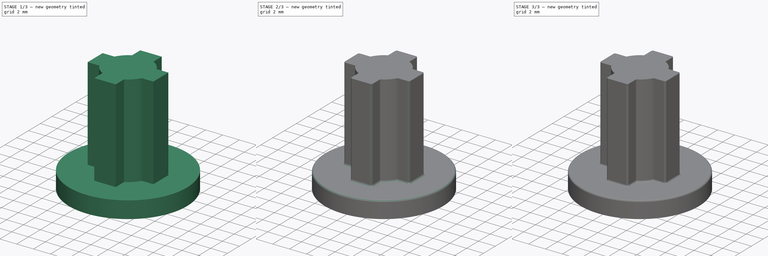
[diagram: build sequence overview — one tinted view per stage of 3, left to right]
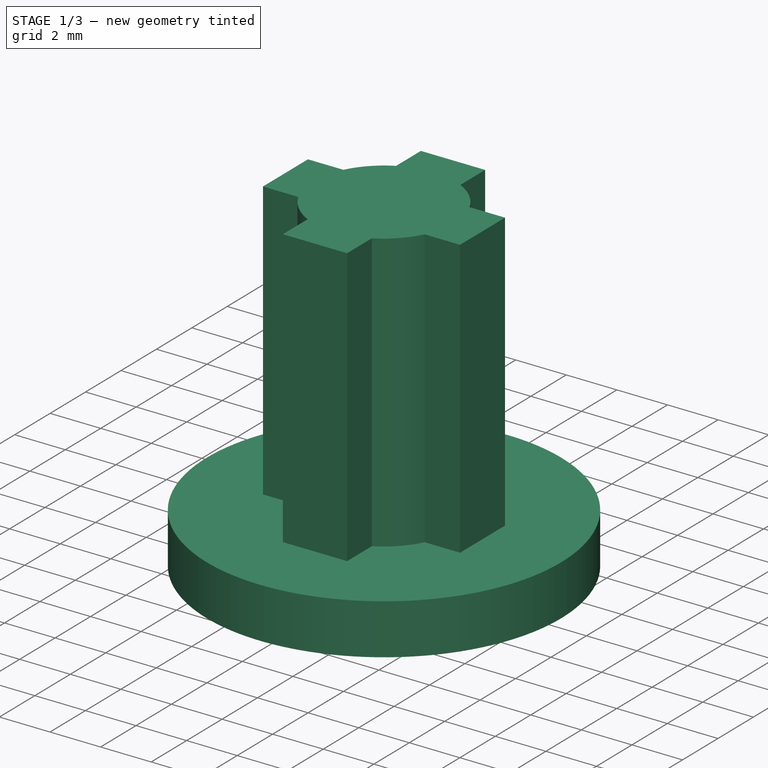
[diagram: stage 1 of 3 — iso view after this stage's code; geometry added in this stage tinted green]
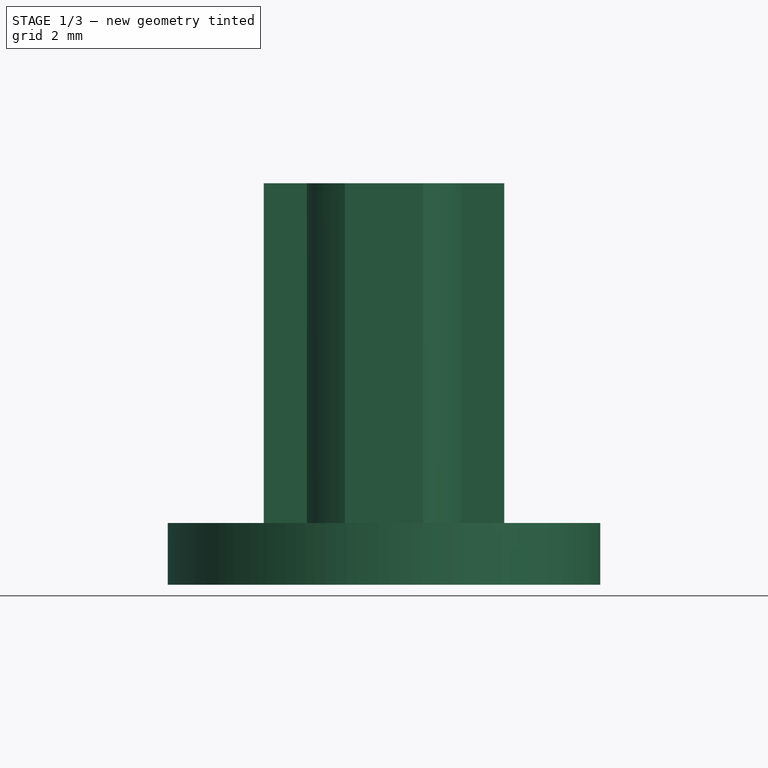
[diagram: stage 1 of 3 — front view after this stage's code; geometry added in this stage tinted green]
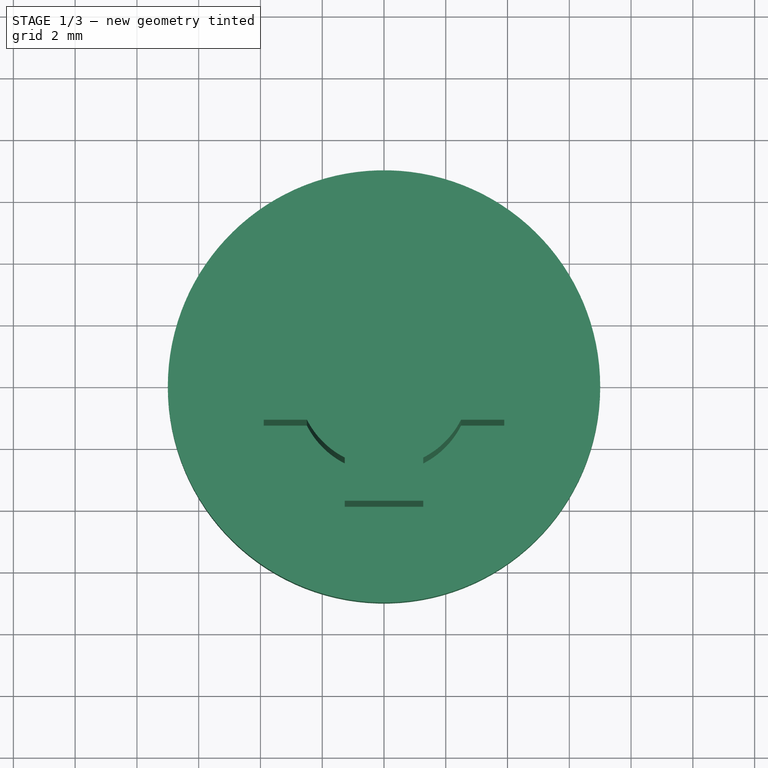
[diagram: stage 1 of 3 — top view after this stage's code; geometry added in this stage tinted green]
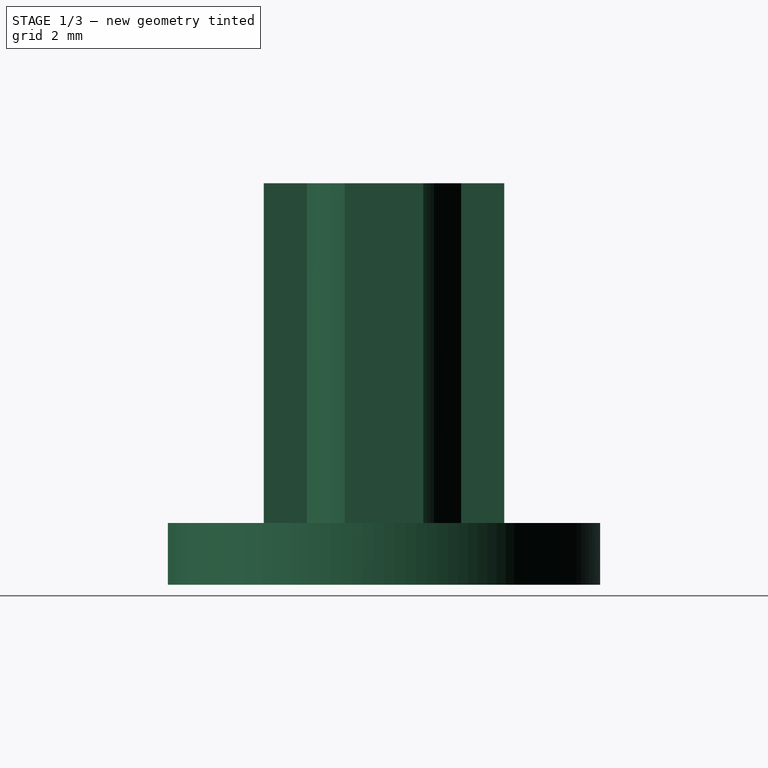
[diagram: stage 1 of 3 — right view after this stage's code; geometry added in this stage tinted green]
FCSTD DOCUMENT  (FreeCAD 0.20R29603 (Git))
Label: master
License: All rights reserved
LicenseURL: http://en.wikipedia.org/wiki/All_rights_reserved
objects: Sketcher::SketchObject×3, PartDesign::Fillet×3, PartDesign::Pad×2, PartDesign::Pocket×1, PartDesign::Chamfer×1, PartDesign::Body×1
note: 18 computed .brp shape members not serialized (recipe doc carries the construction recipe); baked Part::Feature solids carry a one-line shape summary decoded from their .brp

FEATURE [Sketcher::SketchObject] Sketch
  FullyConstrained = true
  MapMode = 5
  Support = -> [XY_Plane]
  sketch-geometry (1):
    g0: Circle CenterX=0 CenterY=0 CenterZ=0 NormalX=0 NormalY=0 NormalZ=1 AngleXU=0 Radius=7
  constraints (2):
    c: Coincident(g0,g-1)
    c: Diameter(g0) = 14
FEATURE [PartDesign::Pad] Pad
  Direction = (1,1,1)
  Length = 2
  Length2 = 100
  Profile = -> Sketch
  Type = 0
FEATURE [Sketcher::SketchObject] Sketch001
  FullyConstrained = true
  MapMode = 5
  Placement = pos=(0,0,2) rot=(0,0,1;0rad)
  Support = -> [Pad]
  sketch-geometry (16):
    g0: ArcOfCircle CenterX=0 CenterY=0 CenterZ=0 NormalX=0 NormalY=0 NormalZ=1 AngleXU=0 Radius=2.8 StartAngle=2.04156 EndAngle=2.67082
    g1: LineSegment StartX=-1.27 StartY=2.49542 StartZ=0 EndX=-1.27 EndY=3.89542 EndZ=0
    g2: LineSegment StartX=-1.27 StartY=3.89542 StartZ=0 EndX=1.27 EndY=3.89542 EndZ=0
    g3: LineSegment StartX=1.27 StartY=3.89542 StartZ=0 EndX=1.27 EndY=2.49542 EndZ=0
    g4: LineSegment StartX=-2.49542 StartY=1.27 StartZ=0 EndX=-3.89542 EndY=1.27 EndZ=0
    g5: LineSegment StartX=-3.89542 StartY=1.27 StartZ=0 EndX=-3.89542 EndY=-1.27 EndZ=0
    g6: LineSegment StartX=-3.89542 StartY=-1.27 StartZ=0 EndX=-2.49542 EndY=-1.27 EndZ=0
    g7: ArcOfCircle CenterX=0 CenterY=0 CenterZ=0 NormalX=0 NormalY=0 NormalZ=1 AngleXU=0 Radius=2.8 StartAngle=3.61236 EndAngle=4.24162
    g8: LineSegment StartX=2.49542 StartY=1.27 StartZ=0 EndX=3.89542 EndY=1.27 EndZ=0
    g9: LineSegment StartX=3.89542 StartY=1.27 StartZ=0 EndX=3.89542 EndY=-1.27 EndZ=0
    g10: LineSegment StartX=3.89542 StartY=-1.27 StartZ=0 EndX=2.49542 EndY=-1.27 EndZ=0
    g11: LineSegment StartX=-1.27 StartY=-2.49542 StartZ=0 EndX=-1.27 EndY=-3.89542 EndZ=0
    g12: LineSegment StartX=-1.27 StartY=-3.89542 StartZ=0 EndX=1.27 EndY=-3.89542 EndZ=0
    g13: LineSegment StartX=1.27 StartY=-3.89542 StartZ=0 EndX=1.27 EndY=-2.49542 EndZ=0
    g14: ArcOfCircle CenterX=0 CenterY=0 CenterZ=0 NormalX=0 NormalY=0 NormalZ=1 AngleXU=0 Radius=2.8 StartAngle=0.470769 EndAngle=1.10003
    g15: ArcOfCircle CenterX=0 CenterY=0 CenterZ=0 NormalX=0 NormalY=0 NormalZ=1 AngleXU=0 Radius=2.8 StartAngle=5.18316 EndAngle=5.81242
  constraints (48):
    c: Coincident(g0,g-1)
    c: Vertical(g1)
    c: Coincident(g2,g1)
    c: Horizontal(g2)
    c: Coincident(g3,g2)
    c: Vertical(g3)
    c: DistanceX(g0,g2) = 1.27
    c: DistanceX(g1,g0) = 1.27
    c: DistanceY(g3,g3) = 1.4
    c: Radius(g0) = 2.8
    c: Coincident(g0,g1)
    c: Coincident(g14,g3)
    c: Horizontal(g4)
    c: Coincident(g5,g4)
    c: Vertical(g5)
    c: Horizontal(g6)
    c: Equal(g5,g2)
    c: Equal(g3,g4)
    c: Equal(g4,g6)
    c: Coincident(g5,g6)
    c: Equal(g0,g7)
    c: Coincident(g0,g4)
    c: Coincident(g7,g6)
    c: Coincident(g0,g7)
    c: Horizontal(g8)
    c: Coincident(g9,g8)
    c: Vertical(g9)
    c: Coincident(g10,g9)
    c: Horizontal(g10)
    c: Equal(g2,g9)
    c: Equal(g3,g8)
    c: Equal(g8,g10)
    c: Vertical(g11)
    c: Coincident(g12,g11)
    c: Horizontal(g12)
    c: Coincident(g13,g12)
    c: Vertical(g13)
    c: Equal(g2,g12)
    c: Equal(g3,g13)
    c: Equal(g13,g11)
    c: Equal(g7,g14)
    c: Coincident(g15,g10)
    c: Coincident(g14,g8)
    c: Coincident(g7,g14)
    c: Equal(g7,g15)
    c: Coincident(g7,g11)
    c: Coincident(g15,g13)
    c: Coincident(g7,g15)
FEATURE [PartDesign::Pad] Pad001
  BaseFeature = -> Pad
  Direction = (1,1,1)
  Length = 11
  Length2 = 100
  Profile = -> Sketch001
  Type = 0
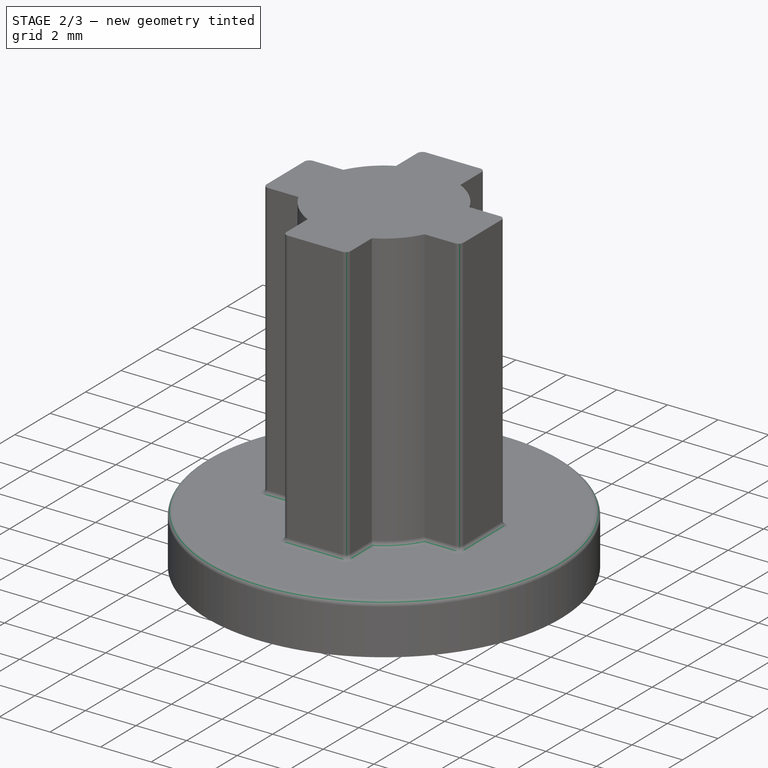
[diagram: stage 2 of 3 — iso view after this stage's code; geometry added in this stage tinted green]
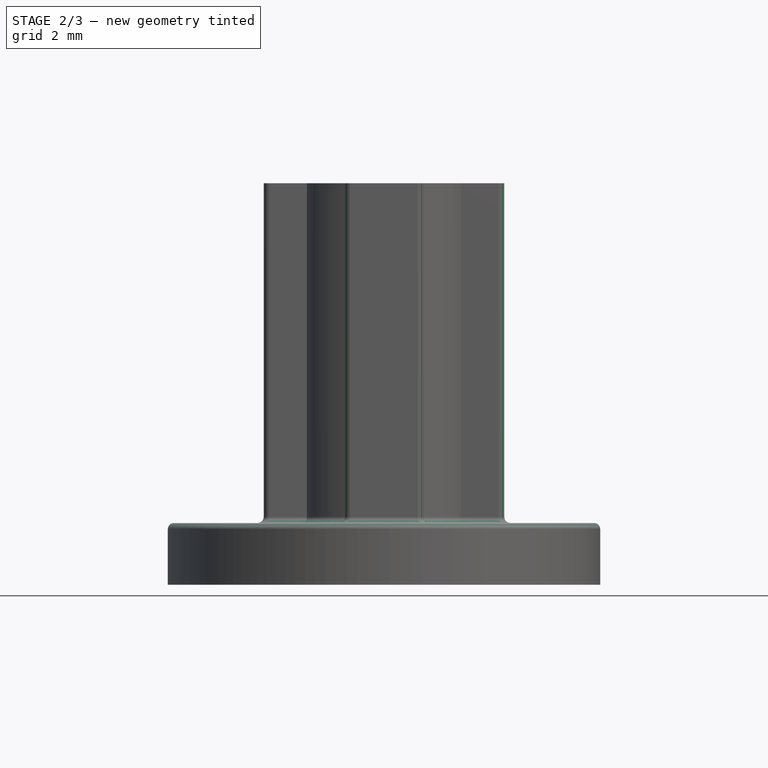
[diagram: stage 2 of 3 — front view after this stage's code; geometry added in this stage tinted green]
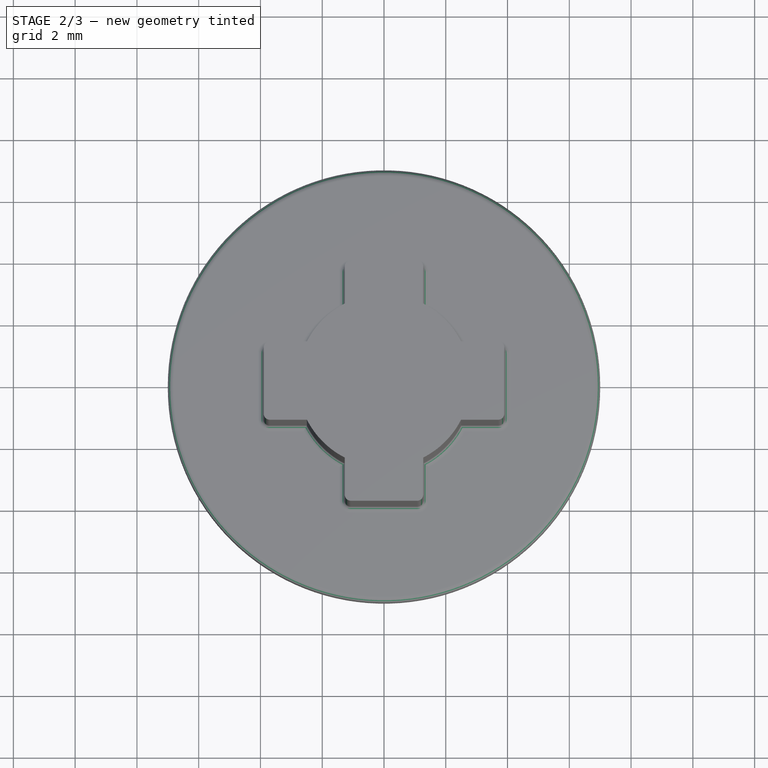
[diagram: stage 2 of 3 — top view after this stage's code; geometry added in this stage tinted green]
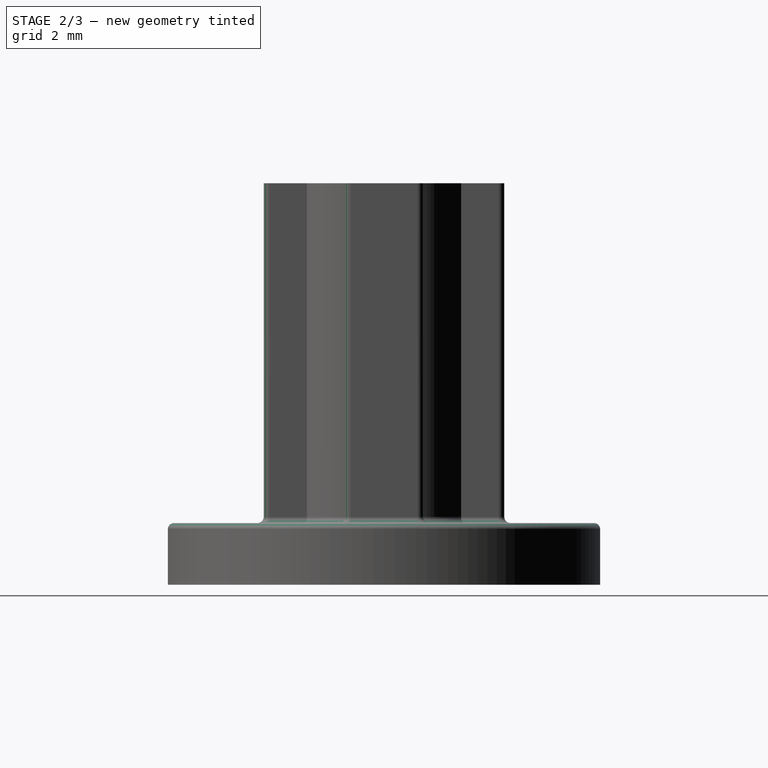
[diagram: stage 2 of 3 — right view after this stage's code; geometry added in this stage tinted green]
FEATURE [Sketcher::SketchObject] Sketch002
  FullyConstrained = true
  MapMode = 5
  Placement = pos=(0,0,0) rot=(1,0,0;3.14159rad)
  Support = -> [Pad001]
  sketch-geometry (4):
    g0: LineSegment StartX=-1.7 StartY=1.7 StartZ=0 EndX=1.7 EndY=1.7 EndZ=0
    g1: LineSegment StartX=1.7 StartY=1.7 StartZ=0 EndX=1.7 EndY=-1.7 EndZ=0
    g2: LineSegment StartX=1.7 StartY=-1.7 StartZ=0 EndX=-1.7 EndY=-1.7 EndZ=0
    g3: LineSegment StartX=-1.7 StartY=-1.7 StartZ=0 EndX=-1.7 EndY=1.7 EndZ=0
  constraints (11):
    c: Coincident(g0,g1)
    c: Coincident(g1,g2)
    c: Coincident(g2,g3)
    c: Coincident(g3,g0)
    c: Horizontal(g0)
    c: Horizontal(g2)
    c: Vertical(g1)
    c: Vertical(g3)
    c: Symmetric(g0,g1,g-1)
    c: DistanceX(g0,g0) = 3.4
    c: Equal(g1,g0)
FEATURE [PartDesign::Pocket] Pocket
  BaseFeature = -> Pad001
  Direction = (1,1,1)
  Length = 8.5
  Length2 = 100
  Profile = -> Sketch002
  Type = 0
FEATURE [PartDesign::Fillet] Fillet
  Base = -> Pocket [Edge45,Edge51,Edge53,Edge59,Edge61,Edge35,Edge37,Edge43]
  BaseFeature = -> Pocket
  Radius = 0.2
  SupportTransform = false
  UseAllEdges = false
FEATURE [PartDesign::Fillet] Fillet001
  Base = -> Fillet [Face1]
  BaseFeature = -> Fillet
  Radius = 0.2
  SupportTransform = false
  UseAllEdges = false
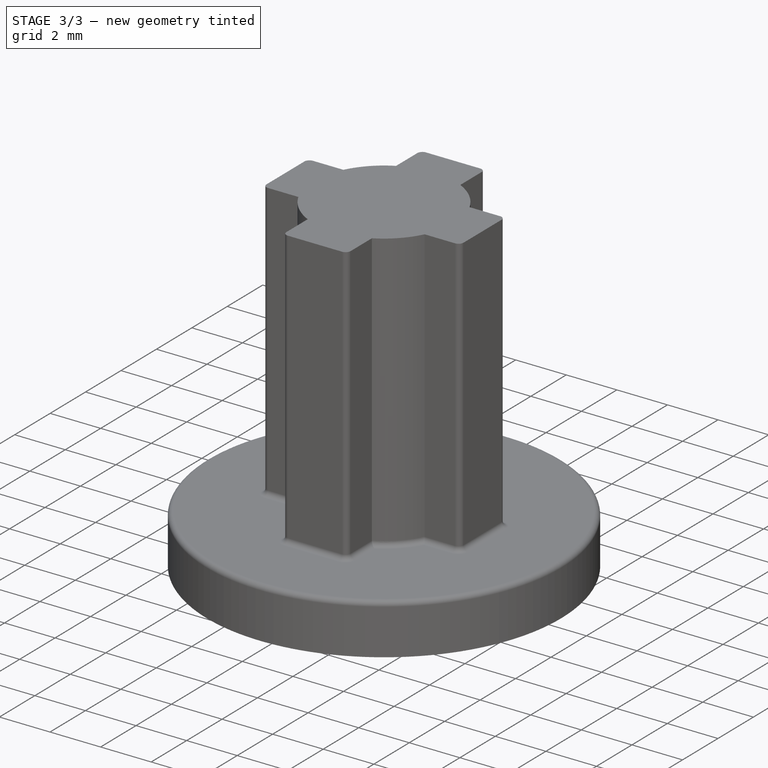
[diagram: stage 3 of 3 — iso view after this stage's code; geometry added in this stage tinted green]
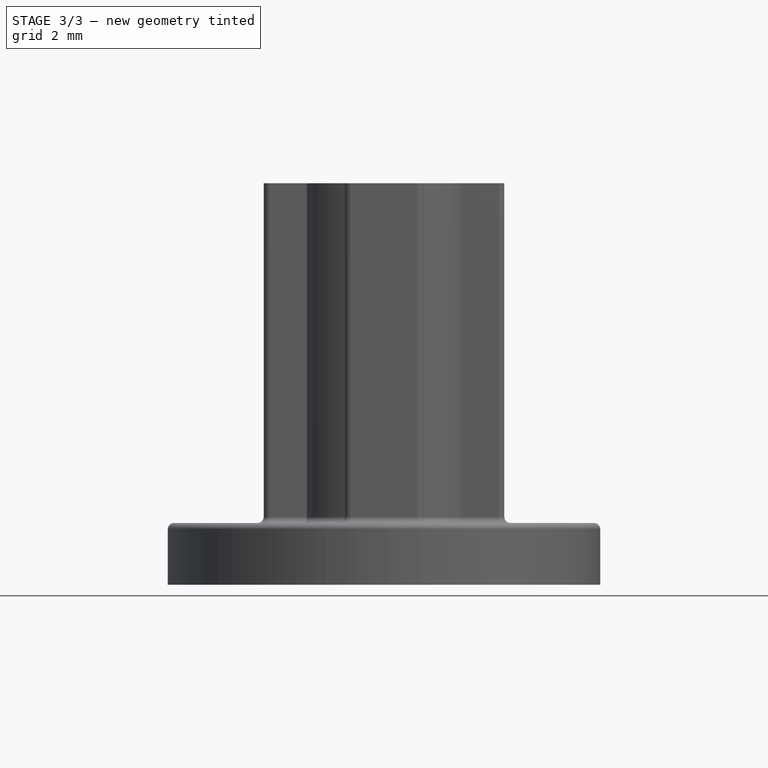
[diagram: stage 3 of 3 — front view after this stage's code; geometry added in this stage tinted green]
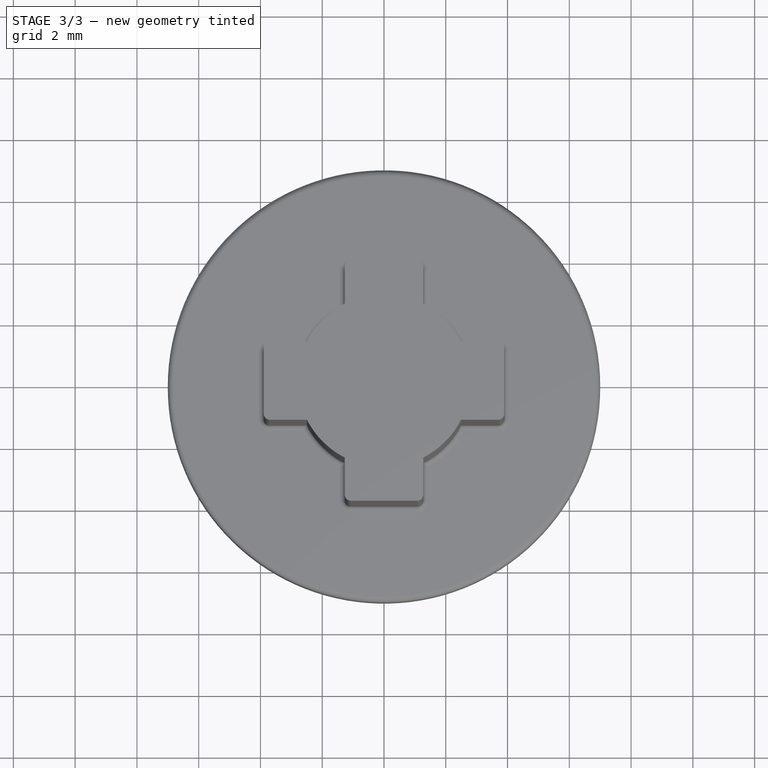
[diagram: stage 3 of 3 — top view after this stage's code; geometry added in this stage tinted green]
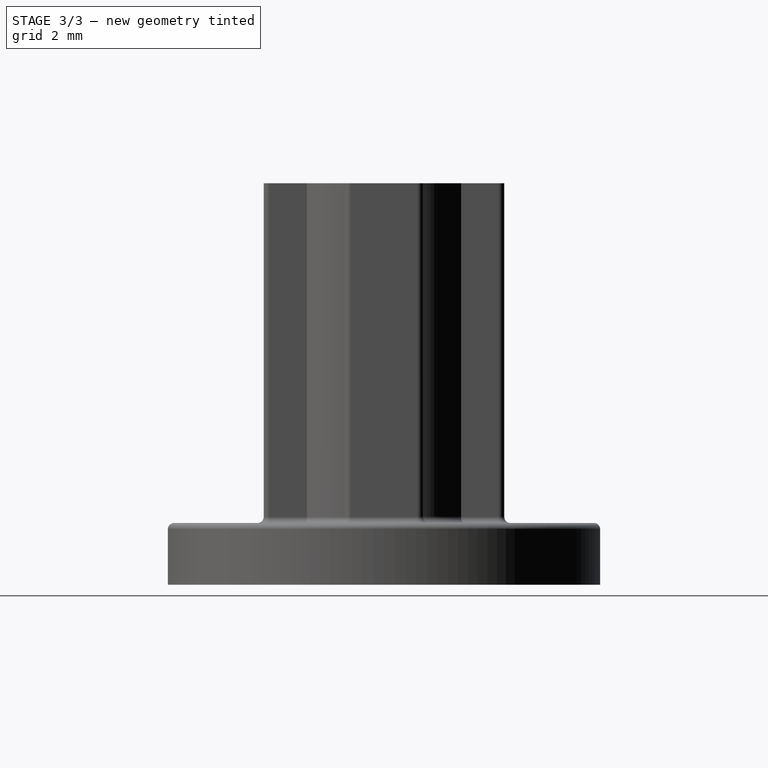
[diagram: stage 3 of 3 — right view after this stage's code; geometry added in this stage tinted green]
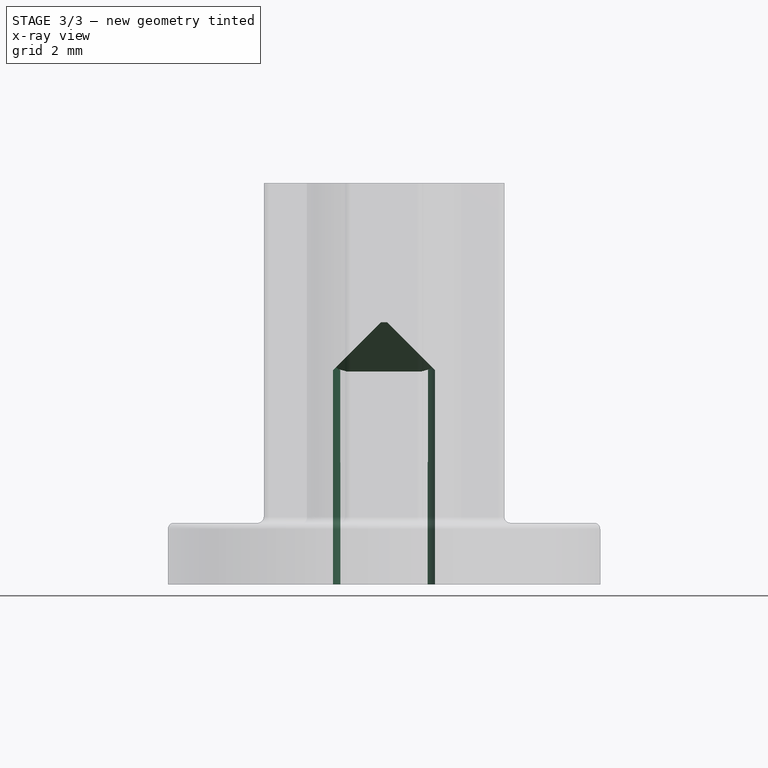
[diagram: stage 3 of 3 — x-ray composite at the front view; earlier geometry ghosted, this stage's added geometry solid]
FEATURE [PartDesign::Chamfer] Chamfer
  Angle = 45
  Base = -> Fillet001 [Edge137,Edge132,Edge134,Edge136]
  BaseFeature = -> Fillet001
  ChamferType = 0
  FlipDirection = false
  Size = 1.6
  Size2 = 1
  SupportTransform = false
  UseAllEdges = false
FEATURE [PartDesign::Fillet] Fillet002
  Base = -> Chamfer [Edge5,Edge1,Edge4,Edge15]
  BaseFeature = -> Chamfer
  Radius = 0.5
  SupportTransform = false
  UseAllEdges = false
FEATURE [PartDesign::Body] Body
  Group = -> [Sketch,Pad,Sketch001,Pad001,Sketch002,Pocket,Fillet,Fillet001,Chamfer,Fillet002]
  Origin = -> Origin
  Tip = -> Fillet002
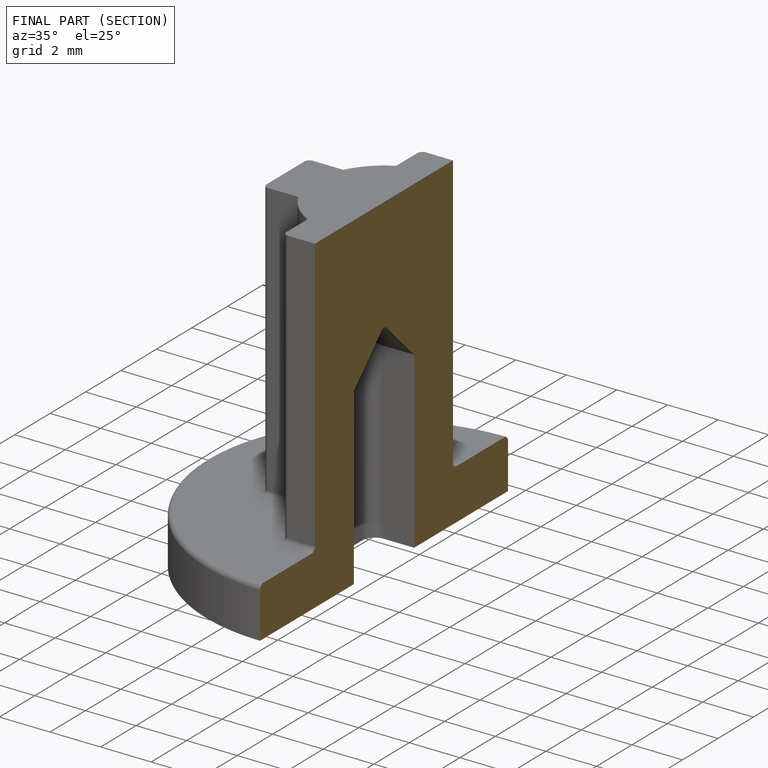
[diagram: finished part — half-section view (interior)]
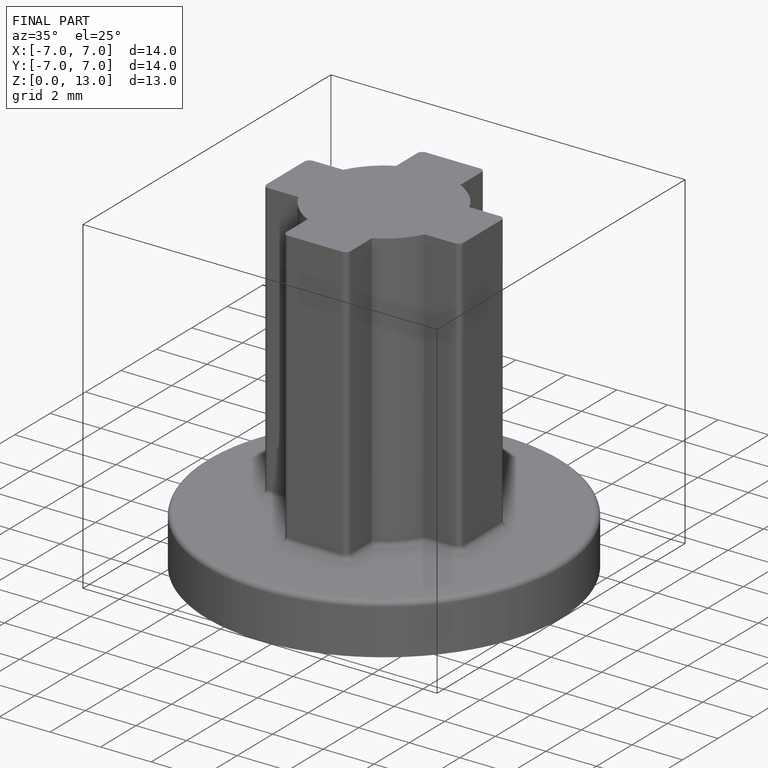
[diagram: finished part — iso view with bounding-box wireframe]
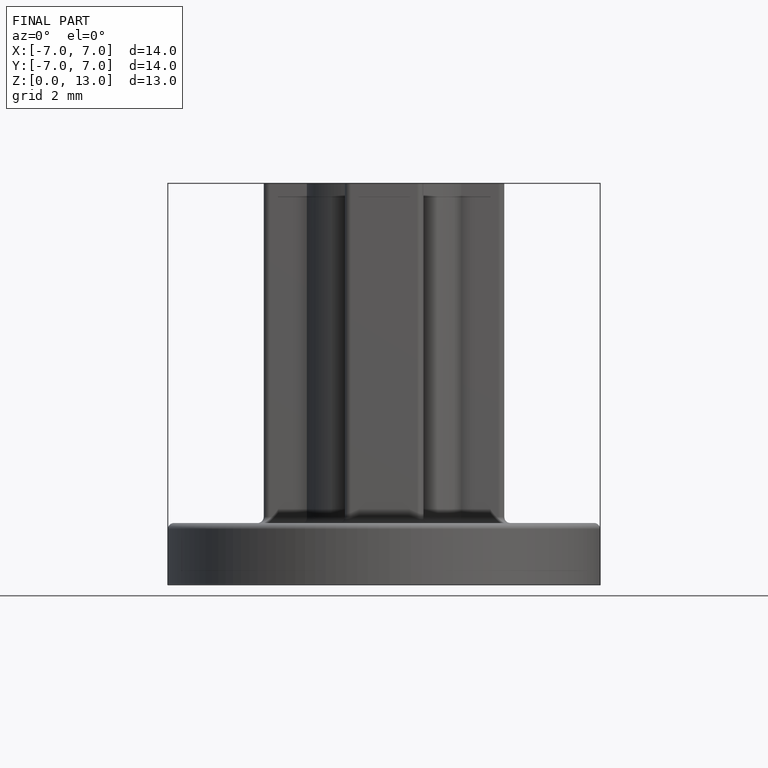
[diagram: finished part — front view with bounding-box wireframe]
